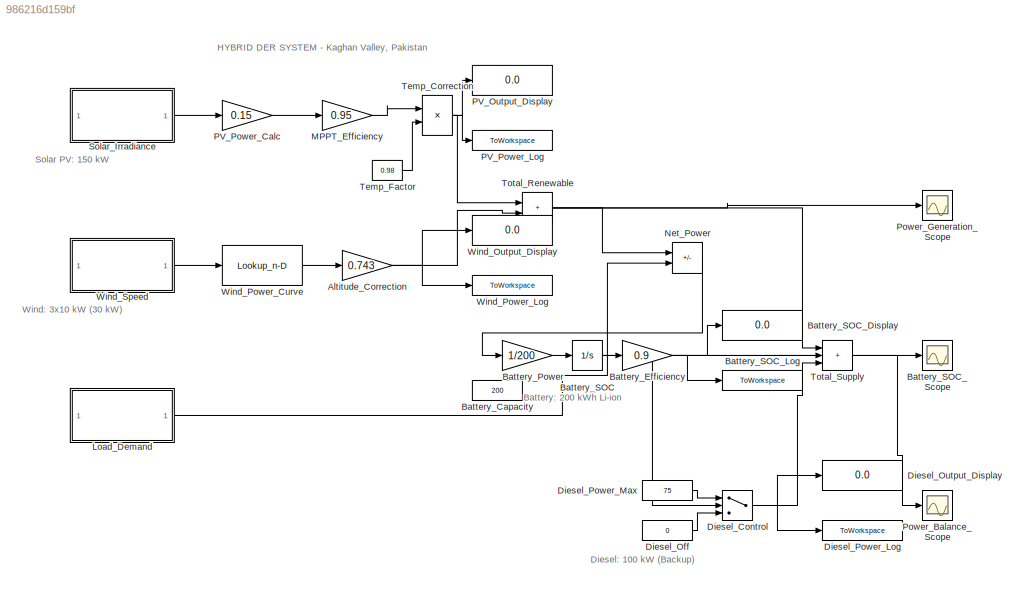
MODEL slx_986216d159bf
KIND model
CONFIG AbsTol = auto
CONFIG EnableMultiTasking = off
CONFIG FixedStep = auto
CONFIG MaxStep = 0.1
CONFIG MinStep = auto
CONFIG RelTol = 1e-3
CONFIG SampleTimeConstraint = Unconstrained
CONFIG SolverName = ode45
CONFIG StartTime = 0.0
CONFIG StopTime = 24
BLOCK [Gain] Altitude_Correction
  Gain = 0.743
BLOCK [Constant] Battery_Capacity
  Value = 200
BLOCK [Gain] Battery_Efficiency
  Gain = 0.9
BLOCK [Gain] Battery_Power
  Gain = 1/200
BLOCK [Integrator] Battery_SOC
  InitialCondition = 0.5
  LowerSaturationLimit = 0.0
  UpperSaturationLimit = 1.0
BLOCK [Display] Battery_SOC_Display
  Decimation = 1
BLOCK [ToWorkspace] Battery_SOC_Log
  FixptAsFi = on
  MaxDataPoints = inf
  SampleTime = -1
  SaveFormat = Timeseries
  VariableName = battery_SOC
BLOCK [Scope] Battery_SOC_Scope
  Floating = off
  GraphicalSettings = {"GraphicalSettings":{"LegacySettings":true,"Style":{"Style":{"PlotType":"Auto"}}}}
  NumInputPorts = 1
  WasSavedAsWebScope = on
BLOCK [Switch] Diesel_Control
  Criteria = u2 > Threshold
  InputSameDT = off
  SaturateOnIntegerOverflow = off
  Threshold = 0.2
BLOCK [Constant] Diesel_Off
  Value = 0
BLOCK [Display] Diesel_Output_Display
  Decimation = 1
BLOCK [ToWorkspace] Diesel_Power_Log
  FixptAsFi = on
  MaxDataPoints = inf
  SampleTime = -1
  SaveFormat = Timeseries
  VariableName = diesel_power
BLOCK [Constant] Diesel_Power_Max
  Value = 75
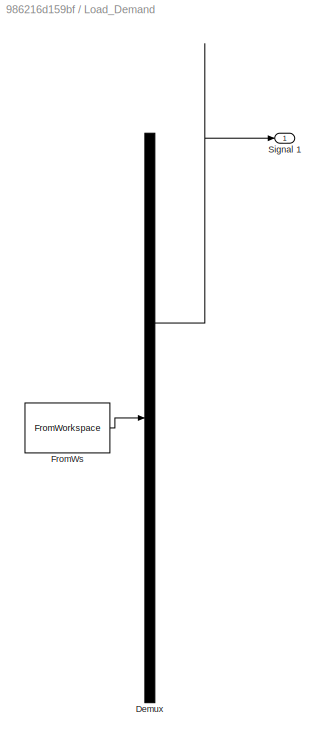
BLOCK [SubSystem] Load_Demand
  ClipboardFcn = sigbuilder_block('clipboard');
  CloseFcn = sigbuilder_block('close');
  ContinueFcn = sigbuilder_block('continue');
  CopyFcn = sigbuilder_block('copy');
  DeleteFcn = sigbuilder_block('delete');
  LoadFcn = sigbuilder_block('load');
  MaskHideContents = on
  ModelCloseFcn = sigbuilder_block('modelClose');
  NameChangeFcn = sigbuilder_block('namechange');
  OpenFcn = sigbuilder_block('open',[437.6 199.2 550.4 400 ]);
  PauseFcn = sigbuilder_block('pause');
  PreSaveFcn = sigbuilder_block('preSave');
  StartFcn = sigbuilder_block('start');
  StopFcn = sigbuilder_block('stop');
  Tag = STV Subsys
BLOCK [Demux] Load_Demand/Demux
  DisplayOption = none
  Outputs = 1
  Tag = STV Demux
BLOCK [FromWorkspace] Load_Demand/FromWs
  Tag = STV FromWs
  VariableName = tuvar
BLOCK [Outport] Load_Demand/Signal 1
  Tag = STV Outport
BLOCK [Gain] MPPT_Efficiency
  Gain = 0.95
BLOCK [Sum] Net_Power
  IconShape = rectangular
  Inputs = +-
BLOCK [Display] PV_Output_Display
  Decimation = 1
BLOCK [Gain] PV_Power_Calc
  Gain = 0.15
BLOCK [ToWorkspace] PV_Power_Log
  FixptAsFi = on
  MaxDataPoints = inf
  SampleTime = -1
  SaveFormat = Timeseries
  VariableName = PV_power
BLOCK [Scope] Power_Balance_Scope
  Floating = off
  GraphicalSettings = {"GraphicalSettings":{"LegacySettings":true,"Style":{"Style":{"PlotType":"Auto"}}}}
  NumInputPorts = 1
  WasSavedAsWebScope = on
BLOCK [Scope] Power_Generation_Scope
  Floating = off
  GraphicalSettings = {"GraphicalSettings":{"LegacySettings":true,"Style":{"Style":{"PlotType":"Auto"}}}}
  NumInputPorts = 1
  WasSavedAsWebScope = on
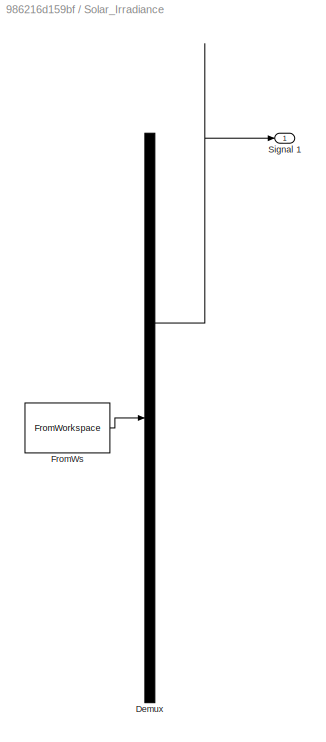
BLOCK [SubSystem] Solar_Irradiance
  ClipboardFcn = sigbuilder_block('clipboard');
  CloseFcn = sigbuilder_block('close');
  ContinueFcn = sigbuilder_block('continue');
  CopyFcn = sigbuilder_block('copy');
  DeleteFcn = sigbuilder_block('delete');
  LoadFcn = sigbuilder_block('load');
  MaskHideContents = on
  ModelCloseFcn = sigbuilder_block('modelClose');
  NameChangeFcn = sigbuilder_block('namechange');
  OpenFcn = sigbuilder_block('open',[437.6 199.2 550.4 400 ]);
  PauseFcn = sigbuilder_block('pause');
  PreSaveFcn = sigbuilder_block('preSave');
  StartFcn = sigbuilder_block('start');
  StopFcn = sigbuilder_block('stop');
  Tag = STV Subsys
BLOCK [Demux] Solar_Irradiance/Demux
  DisplayOption = none
  Outputs = 1
  Tag = STV Demux
BLOCK [FromWorkspace] Solar_Irradiance/FromWs
  Tag = STV FromWs
  VariableName = tuvar
BLOCK [Outport] Solar_Irradiance/Signal 1
  Tag = STV Outport
BLOCK [Product] Temp_Correction
BLOCK [Constant] Temp_Factor
  Value = 0.98
BLOCK [Sum] Total_Renewable
  IconShape = rectangular
BLOCK [Sum] Total_Supply
  IconShape = rectangular
  Inputs = +++
BLOCK [Display] Wind_Output_Display
  Decimation = 1
BLOCK [Lookup_n-D] Wind_Power_Curve
  BreakpointsForDimension1 = [0 3 6 9 12 15 25]
  InputPortMap = u0
  InternalRulePriority = Speed
  NumberOfTableDimensions = 1
  RndMeth = Simplest
  Table = [0 0 5 15 30 30 0]
BLOCK [ToWorkspace] Wind_Power_Log
  FixptAsFi = on
  MaxDataPoints = inf
  SampleTime = -1
  SaveFormat = Timeseries
  VariableName = wind_power
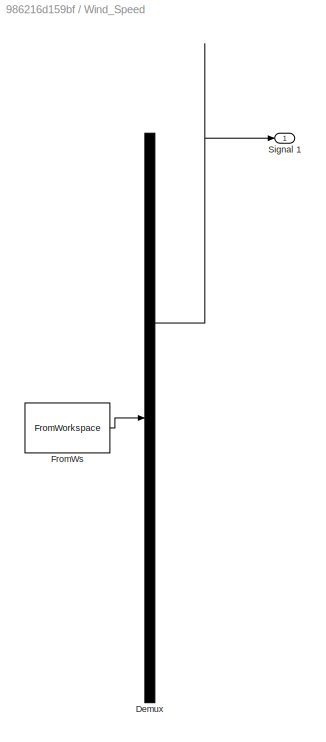
BLOCK [SubSystem] Wind_Speed
  ClipboardFcn = sigbuilder_block('clipboard');
  CloseFcn = sigbuilder_block('close');
  ContinueFcn = sigbuilder_block('continue');
  CopyFcn = sigbuilder_block('copy');
  DeleteFcn = sigbuilder_block('delete');
  LoadFcn = sigbuilder_block('load');
  MaskHideContents = on
  ModelCloseFcn = sigbuilder_block('modelClose');
  NameChangeFcn = sigbuilder_block('namechange');
  OpenFcn = sigbuilder_block('open',[437.6 199.2 550.4 400 ]);
  PauseFcn = sigbuilder_block('pause');
  PreSaveFcn = sigbuilder_block('preSave');
  StartFcn = sigbuilder_block('start');
  StopFcn = sigbuilder_block('stop');
  Tag = STV Subsys
BLOCK [Demux] Wind_Speed/Demux
  DisplayOption = none
  Outputs = 1
  Tag = STV Demux
BLOCK [FromWorkspace] Wind_Speed/FromWs
  Tag = STV FromWs
  VariableName = tuvar
BLOCK [Outport] Wind_Speed/Signal 1
  Tag = STV Outport
ANNOTATION (root): Battery: 200 kWh Li-ion
ANNOTATION (root): Diesel: 100 kW (Backup)
ANNOTATION (root): HYBRID DER SYSTEM - Kaghan Valley, Pakistan
ANNOTATION (root): Solar PV: 150 kW
ANNOTATION (root): Wind: 3x10 kW (30 kW)
NET Altitude_Correction:1 -> Total_Renewable:2, Wind_Output_Display:1, Wind_Power_Log:1
NET Battery_Efficiency:1 -> Battery_SOC_Display:1, Battery_SOC_Log:1, Total_Supply:2
LINE Battery_Power:1 -> Battery_SOC:1
NET Battery_SOC:1 -> Battery_Efficiency:1, Battery_SOC_Scope:1, Diesel_Control:2
NET Diesel_Control:1 -> Diesel_Output_Display:1, Diesel_Power_Log:1, Total_Supply:3
LINE Diesel_Off:1 -> Diesel_Control:3
LINE Diesel_Power_Max:1 -> Diesel_Control:1
LINE Load_Demand:1 -> Net_Power:2
LINE MPPT_Efficiency:1 -> Temp_Correction:1
LINE Net_Power:1 -> Battery_Power:1
LINE PV_Power_Calc:1 -> MPPT_Efficiency:1
LINE Solar_Irradiance:1 -> PV_Power_Calc:1
NET Temp_Correction:1 -> PV_Output_Display:1, PV_Power_Log:1, Total_Renewable:1
LINE Temp_Factor:1 -> Temp_Correction:2
NET Total_Renewable:1 -> Net_Power:1, Power_Generation_Scope:1, Total_Supply:1
LINE Total_Supply:1 -> Power_Balance_Scope:1
LINE Wind_Power_Curve:1 -> Altitude_Correction:1
LINE Wind_Speed:1 -> Wind_Power_Curve:1
note: NET lines group one-source signal fan-out (src -> all destinations, sorted); 1:1 wires keep LINE
